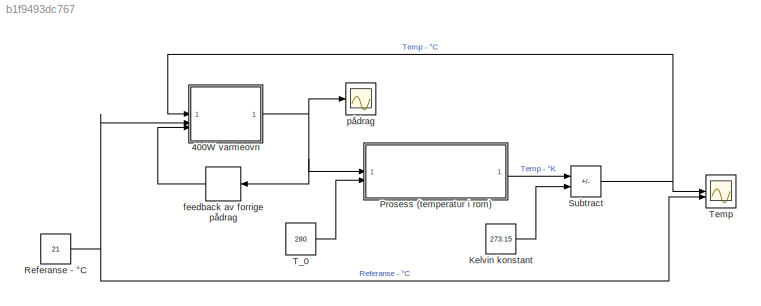
MODEL slx_b1f9493dc767
KIND model
CONFIG AbsTol = auto
CONFIG EnableMultiTasking = off
CONFIG FixedStep = auto
CONFIG MaxStep = auto
CONFIG MinStep = auto
CONFIG RelTol = 1e-3
CONFIG SampleTimeConstraint = Unconstrained
CONFIG SolverName = VariableStepAuto
CONFIG StartTime = 0.0
CONFIG StopTime = 20000
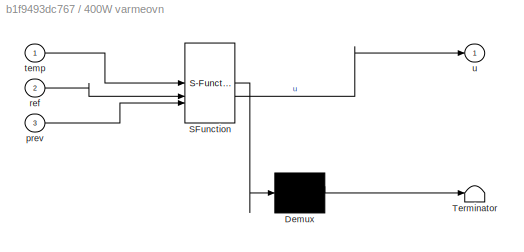
BLOCK [SubSystem] 400W varmeovn
  ErrorFcn = Stateflow.Translate.translate
  PermitHierarchicalResolution = ExplicitOnly
  SFBlockType = MATLAB Function
  TreatAsAtomicUnit = on
BLOCK [Demux] 400W varmeovn/ Demux 
  Outputs = 1
BLOCK [S-Function] 400W varmeovn/ SFunction 
  EnableBusSupport = off
  FunctionName = sf_sfun
  PortCounts = [3 2]
  SFcnIsStateOwnerBlock = off
  SFunctionDeploymentMode = off
  Tag = Stateflow S-Function 2
BLOCK [Terminator] 400W varmeovn/ Terminator 
BLOCK [Inport] 400W varmeovn/prev
  Port = 3
BLOCK [Inport] 400W varmeovn/ref
  Port = 2
BLOCK [Inport] 400W varmeovn/temp
BLOCK [Outport] 400W varmeovn/u
BLOCK [Constant] Kelvin konstant
  Value = 273.15
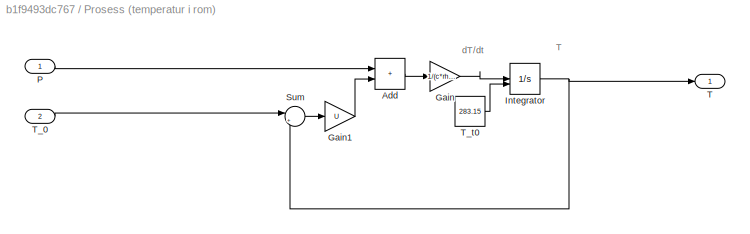
BLOCK [SubSystem] Prosess (temperatur i rom)
BLOCK [Sum] Prosess (temperatur i rom)/Add
  IconShape = rectangular
BLOCK [Gain] Prosess (temperatur i rom)/Gain
  Gain = 1/(c*rho*V)
BLOCK [Gain] Prosess (temperatur i rom)/Gain1
  Gain = U
BLOCK [Integrator] Prosess (temperatur i rom)/Integrator
  InitialConditionSource = external
BLOCK [Inport] Prosess (temperatur i rom)/P
BLOCK [Sum] Prosess (temperatur i rom)/Sum
  Inputs = |+-
BLOCK [Outport] Prosess (temperatur i rom)/T
BLOCK [Inport] Prosess (temperatur i rom)/T_0
  Port = 2
BLOCK [Constant] Prosess (temperatur i rom)/T_t0
  Value = 283.15
BLOCK [Constant] Referanse - °C
  NameLocation = left
  Value = 21
BLOCK [Sum] Subtract
  IconShape = rectangular
  Inputs = +-
BLOCK [Constant] T_0
  Value = 280
BLOCK [Scope] Temp
  ActiveDisplayYMaximum = 24.81867622088668
  ActiveDisplayYMinimum = 8.35348041990148
  ContainerLayout = {"WindowBounds":[2261,1081,1280,805],"gridDimensions":{"w":1,"h":1},"tileCount":1,"tileCoverage":1,"columnWeights":1,"rowWeights":1,"tileOccupancy":{}}
  Floating = off
  GraphicalSettings = {"Style":{"BackgroundColor":[0.12941176470588237,0.12941176470588237,0.12941176470588237],"AxesColor":[0.07058823529411765,0.07058823529411765,0.07058823529411765],"LabelsColor":[0.8509803921568627,0.8509803921568627,0.8509803921568627],"PreserveColors":false,"Visible":[true,true],"LineStyle":["-","-"],"LineWidth":[1.5,1.5],"BarWidth":[0.9,0.9],"LineColor":["auto","auto"],"LineFaceAlpha":[1,1],"Li...<+2152ch>
  LayoutDimensionsString = [1,1]
  MultipleDisplayCache = [{"MaxYLimMag":24.81867622088668,"MaxYLimReal":24.81867622088668,"MinYLimMag":8.35348041990148,"MinYLimReal":8.35348041990148,"PlotAsMagnitudePhase":false,"ShowGrid":true,"ShowLegend":true,"Title":"%<SignalLabel>","YLabel":""}]
  NumInputPorts = 2
  ScopeFrameLocation = window
  ShowLegend = on
  Visible = on
  WasSavedAsWebScope = on
  WindowPosition = [2202.000000,-153.000000,560.000000,420.000000,]
BLOCK [Delay] feedback av forrige pådrag
  DelayLength = 1
  InputPortMap = u0
BLOCK [Scope] pådrag
  ActiveDisplayYMaximum = 450
  ActiveDisplayYMinimum = -49.999999999999986
  ContainerLayout = {"WindowBounds":[2261,1081,1280,805],"gridDimensions":{"w":1,"h":1},"tileCount":1,"tileCoverage":1,"columnWeights":1,"rowWeights":1,"tileOccupancy":{}}
  DataLoggingVariableName = ScopeData1
  Floating = off
  GraphicalSettings = {"Style":{"BackgroundColor":[0.12941176470588237,0.12941176470588237,0.12941176470588237],"AxesColor":[0.07058823529411765,0.07058823529411765,0.07058823529411765],"LabelsColor":[0.8509803921568627,0.8509803921568627,0.8509803921568627],"PreserveColors":false,"Visible":[true],"LineStyle":["-"],"LineWidth":[1.5],"BarWidth":[0.9],"LineColor":["auto"],"LineFaceAlpha":[1],"LineEdgeAlpha":[1],"Marker":...<+1949ch>
  MultipleDisplayCache = [{"MaxYLimMag":450,"MaxYLimReal":450,"MinYLimMag":0,"MinYLimReal":-49.999999999999986,"PlotAsMagnitudePhase":false,"ShowGrid":true,"ShowLegend":true,"Title":"%<SignalLabel>","YLabel":""}]
  NumInputPorts = 1
  ScopeFrameLocation = window
  ShowLegend = on
  Visible = on
  WasSavedAsWebScope = on
  WindowPosition = [2202.000000,402.000000,560.000000,420.000000,]
ANNOTATION Prosess (temperatur i rom): T
ANNOTATION Prosess (temperatur i rom): dT/dt
NET 400W varmeovn:1 -> Prosess (temperatur i rom):1, feedback av forrige pådrag:1, pådrag:1
LINE Kelvin konstant:1 -> Subtract:2
LINE Prosess (temperatur i rom)/Add:1 -> Prosess (temperatur i rom)/Gain:1
LINE Prosess (temperatur i rom)/Gain1:1 -> Prosess (temperatur i rom)/Add:2
LINE Prosess (temperatur i rom)/Gain:1 -> Prosess (temperatur i rom)/Integrator:1
NET Prosess (temperatur i rom)/Integrator:1 -> Prosess (temperatur i rom)/Sum:2, Prosess (temperatur i rom)/T:1
LINE Prosess (temperatur i rom)/P:1 -> Prosess (temperatur i rom)/Add:1
LINE Prosess (temperatur i rom)/Sum:1 -> Prosess (temperatur i rom)/Gain1:1
LINE Prosess (temperatur i rom)/T_0:1 -> Prosess (temperatur i rom)/Sum:1
LINE Prosess (temperatur i rom)/T_t0:1 -> Prosess (temperatur i rom)/Integrator:2
LINE Prosess (temperatur i rom):1 -> Subtract:1
NET Referanse - °C:1 -> 400W varmeovn:2, Temp:2
NET Subtract:1 -> 400W varmeovn:1, Temp:1
LINE T_0:1 -> Prosess (temperatur i rom):2
LINE feedback av forrige pådrag:1 -> 400W varmeovn:3
note: NET lines group one-source signal fan-out (src -> all destinations, sorted); 1:1 wires keep LINE
CHART 400W varmeovn states=1 transitions=1
  STATE_LABEL 'eML_blk_kernel()'
  STATE_LABEL 'SCRIPT:\nfunction u = fcn(temp, ref, prev)\n\non = 400; % Watt\noff = 0;\n\nhysterese = 0.5; % °C\n\nif temp <= ref+hysterese && temp >= ref-hysterese\n    u = prev;\nelseif temp < ref\n    u = on;\nelse \n    u = off;\nend'
CHART  states=0 transitions=0
